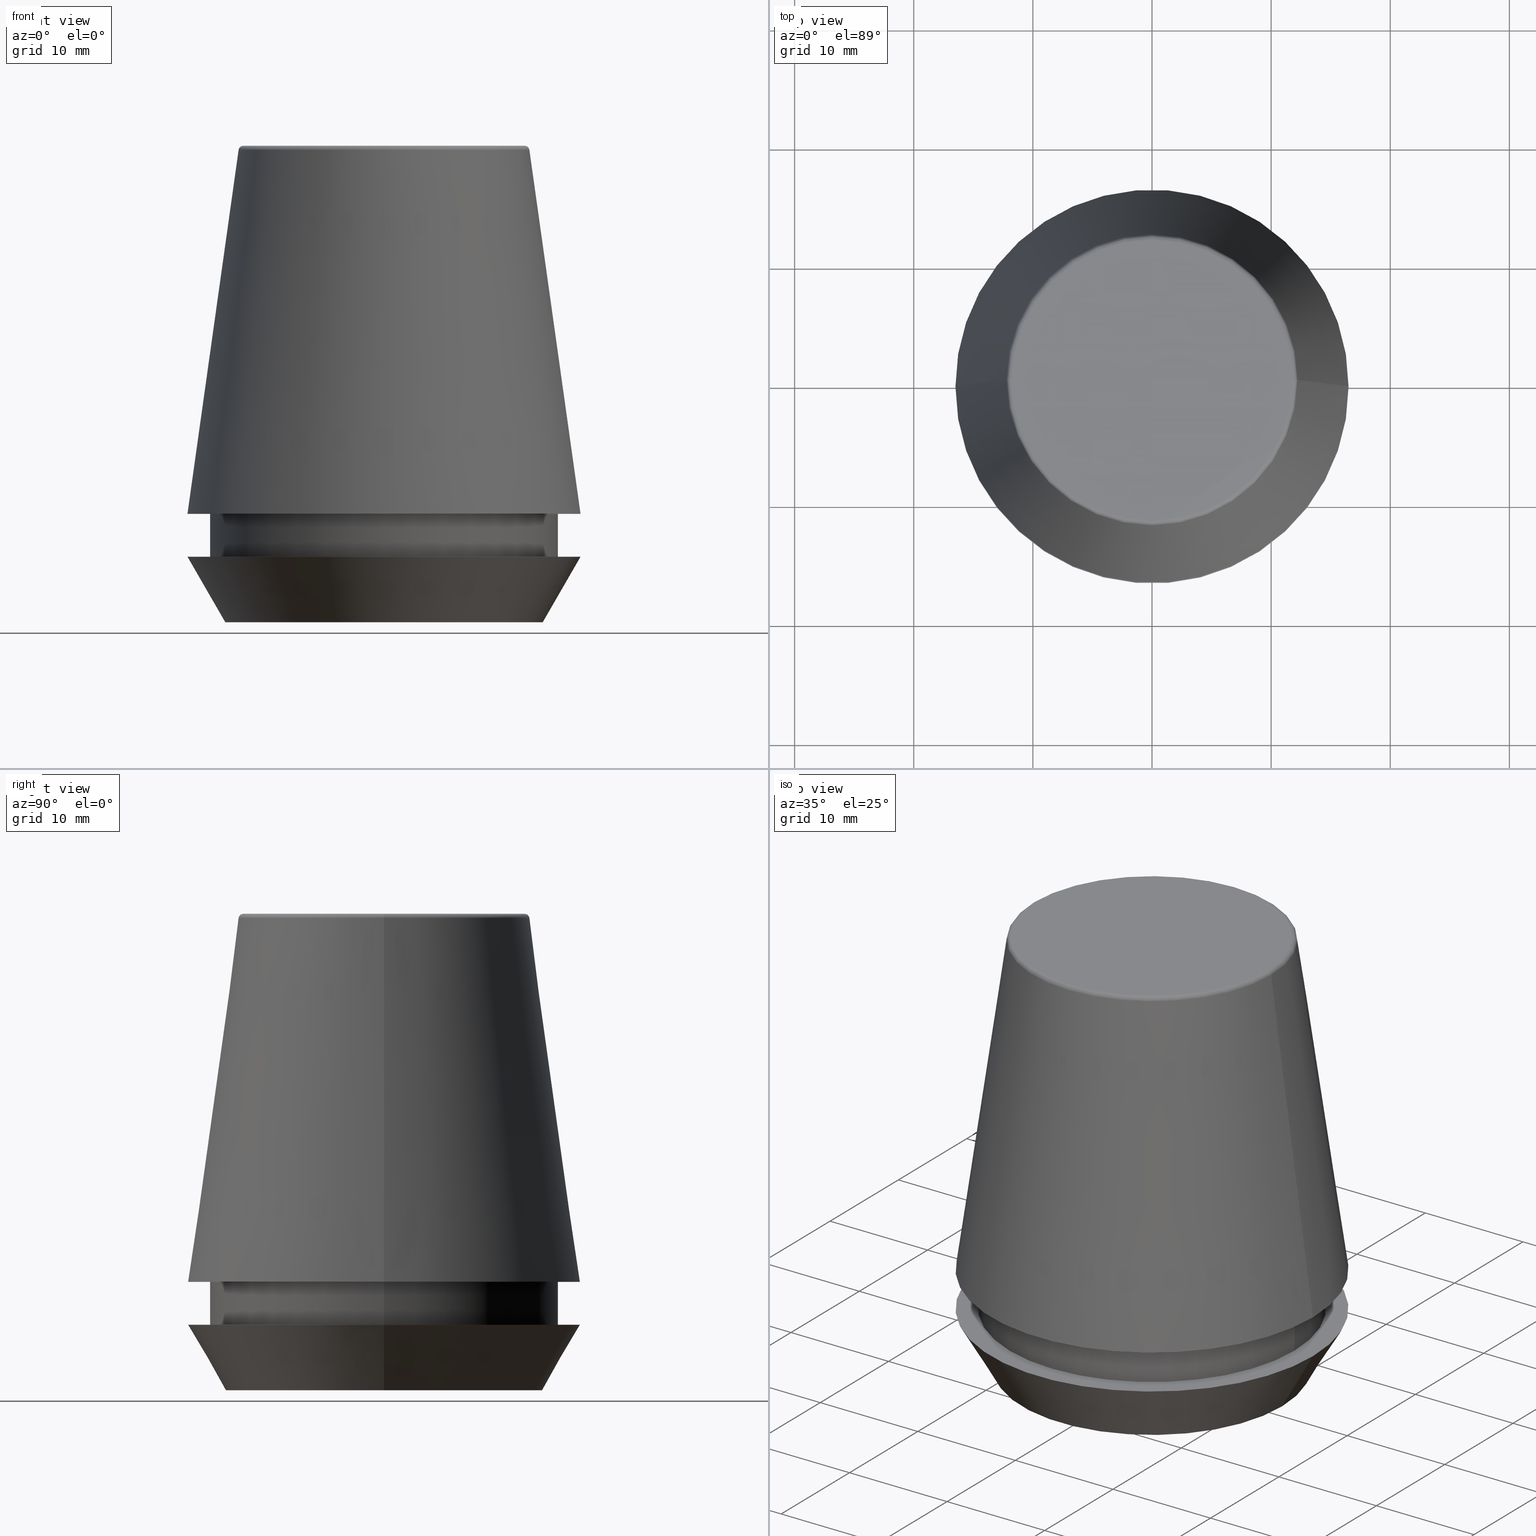
[diagram: canonical four-view strip — front | top / right | iso, engineering-drawing reading convention]
A machine part, canonical four-view strip (front | top / right | iso — engineering-drawing reading convention). The complete STEP part file that produces these views, byte-faithful:
ISO-10303-21;
HEADER;
FILE_DESCRIPTION (( 'STEP AP203' ),
    '1' );
FILE_NAME ('TAP COLLET ER 32G  20.0 X 16.0.STEP',
    '2019-04-09T11:43:04',
    ( '' ),
    ( '' ),
    'SwSTEP 2.0',
    'SolidWorks 2014',
    '' );
FILE_SCHEMA (( 'CONFIG_CONTROL_DESIGN' ));
ENDSEC;

DATA;
#1 = ORIENTED_EDGE ( 'NONE', *, *, #200, .F. ) ;
#2 = DATE_AND_TIME ( #73, #158 ) ;
#3 = DIRECTION ( 'NONE',  ( 1.000000000000000000, 0.0000000000000000000, 0.0000000000000000000 ) ) ;
#4 = CYLINDRICAL_SURFACE ( 'NONE', #236, 14.60000000000000000 ) ;
#5 = DIRECTION ( 'NONE',  ( -1.000000000000000000, 0.0000000000000000000, 0.0000000000000000000 ) ) ;
#6 = ORIENTED_EDGE ( 'NONE', *, *, #149, .F. ) ;
#7 = PERSON_AND_ORGANIZATION_ROLE ( 'design_owner' ) ;
#8 = PERSON_AND_ORGANIZATION ( #233, #201 ) ;
#9 = CIRCLE ( 'NONE', #103, 16.50032537154048700 ) ;
#10 = CARTESIAN_POINT ( 'NONE',  ( 12.20600611160694300, 1.757755848304969800E-015, 39.65566924038402900 ) ) ;
#11 = LINE ( 'NONE', #161, #309 ) ;
#12 = VERTEX_POINT ( 'NONE', #91 ) ;
#13 = ORIENTED_EDGE ( 'NONE', *, *, #229, .F. ) ;
#14 = ORIENTED_EDGE ( 'NONE', *, *, #169, .F. ) ;
#15 = DIRECTION ( 'NONE',  ( -0.0000000000000000000, -0.0000000000000000000, 1.000000000000000000 ) ) ;
#16 = LOCAL_TIME ( 17, 13, 4.000000000000000000, #97 ) ;
#17 = PLANE ( 'NONE',  #96 ) ;
#18 = AXIS2_PLACEMENT_3D ( 'NONE', #313, #69, #252 ) ;
#19 = ORIENTED_EDGE ( 'NONE', *, *, #168, .T. ) ;
#20 = CALENDAR_DATE ( 2019, 9, 4 ) ;
#21 = CARTESIAN_POINT ( 'NONE',  ( 0.0000000000000000000, 11.80989888411031400, 40.00000000000000700 ) ) ;
#22 = SHAPE_DEFINITION_REPRESENTATION ( #381, #129 ) ;
#23 = VERTEX_POINT ( 'NONE', #127 ) ;
#24 = AXIS2_PLACEMENT_3D ( 'NONE', #75, #197, #3 ) ;
#25 = EDGE_LOOP ( 'NONE', ( #43, #64, #294, #130 ) ) ;
#26 = DIRECTION ( 'NONE',  ( 0.0000000000000000000, -0.0000000000000000000, 1.000000000000000000 ) ) ;
#27 = VERTEX_POINT ( 'NONE', #85 ) ;
#28 = ADVANCED_FACE ( 'NONE', ( #183 ), #31, .F. ) ;
#29 = DATE_TIME_ROLE ( 'creation_date' ) ;
#30 = DATE_AND_TIME ( #115, #196 ) ;
#31 = PLANE ( 'NONE',  #136 ) ;
#32 = AXIS2_PLACEMENT_3D ( 'NONE', #83, #116, #70 ) ;
#33 = CIRCLE ( 'NONE', #32, 0.4000000000000028000 ) ;
#34 = VERTEX_POINT ( 'NONE', #383 ) ;
#35 = DIRECTION ( 'NONE',  ( -0.0000000000000000000, -0.0000000000000000000, 1.000000000000000000 ) ) ;
#36 = DIRECTION ( 'NONE',  ( -0.0000000000000000000, -0.0000000000000000000, 1.000000000000000000 ) ) ;
#37 =( GEOMETRIC_REPRESENTATION_CONTEXT ( 3 ) GLOBAL_UNCERTAINTY_ASSIGNED_CONTEXT ( ( #53 ) ) GLOBAL_UNIT_ASSIGNED_CONTEXT ( ( #312, #249, #192 ) ) REPRESENTATION_CONTEXT ( 'NONE', 'WORKASPACE' ) );
#38 = DIRECTION ( 'NONE',  ( -0.0000000000000000000, -0.0000000000000000000, 1.000000000000000000 ) ) ;
#39 = PERSON_AND_ORGANIZATION ( #233, #201 ) ;
#40 = DIRECTION ( 'NONE',  ( -0.0000000000000000000, -0.0000000000000000000, 1.000000000000000000 ) ) ;
#41 = DIRECTION ( 'NONE',  ( -0.0000000000000000000, -0.0000000000000000000, 1.000000000000000000 ) ) ;
#42 = ORIENTED_EDGE ( 'NONE', *, *, #186, .F. ) ;
#43 = ORIENTED_EDGE ( 'NONE', *, *, #212, .F. ) ;
#44 = AXIS2_PLACEMENT_3D ( 'NONE', #344, #138, #251 ) ;
#45 = ADVANCED_FACE ( 'NONE', ( #264 ), #4, .T. ) ;
#46 = AXIS2_PLACEMENT_3D ( 'NONE', #280, #36, #219 ) ;
#47 = DIRECTION ( 'NONE',  ( 1.000000000000000000, 0.0000000000000000000, 0.0000000000000000000 ) ) ;
#48 = FACE_OUTER_BOUND ( 'NONE', #253, .T. ) ;
#49 = DESIGN_CONTEXT ( 'detailed design', #339, 'design' ) ;
#50 = ADVANCED_FACE ( 'NONE', ( #243 ), #343, .T. ) ;
#51 = AXIS2_PLACEMENT_3D ( 'NONE', #310, #99, #66 ) ;
#52 = VERTEX_POINT ( 'NONE', #152 ) ;
#53 = UNCERTAINTY_MEASURE_WITH_UNIT (LENGTH_MEASURE( 1.000000000000000100E-005 ), #312, 'distance_accuracy_value', 'NONE');
#54 = ORIENTED_EDGE ( 'NONE', *, *, #375, .T. ) ;
#55 = ORIENTED_EDGE ( 'NONE', *, *, #191, .T. ) ;
#56 = CIRCLE ( 'NONE', #320, 12.20600611160694300 ) ;
#57 = MANIFOLD_SOLID_BREP ( 'Revolve1', #90 ) ;
#58 = DIRECTION ( 'NONE',  ( 0.0000000000000000000, 0.0000000000000000000, -1.000000000000000000 ) ) ;
#59 = LINE ( 'NONE', #215, #247 ) ;
#60 = CARTESIAN_POINT ( 'NONE',  ( 0.0000000000000000000, 0.0000000000000000000, 9.099999999999997900 ) ) ;
#61 = ORIENTED_EDGE ( 'NONE', *, *, #191, .F. ) ;
#62 = MECHANICAL_CONTEXT ( 'NONE', #376, 'mechanical' ) ;
#63 = ADVANCED_FACE ( 'NONE', ( #162 ), #367, .F. ) ;
#64 = ORIENTED_EDGE ( 'NONE', *, *, #147, .T. ) ;
#65 = LOCAL_TIME ( 17, 13, 4.000000000000000000, #148 ) ;
#66 = DIRECTION ( 'NONE',  ( 0.0000000000000000000, 0.0000000000000000000, -1.000000000000000000 ) ) ;
#67 = VECTOR ( 'NONE', #378, 1000.000000000000000 ) ;
#68 = CARTESIAN_POINT ( 'NONE',  ( -12.20600611160694300, 0.0000000000000000000, 39.65566924038402900 ) ) ;
#69 = DIRECTION ( 'NONE',  ( -0.0000000000000000000, -0.0000000000000000000, 1.000000000000000000 ) ) ;
#70 = DIRECTION ( 'NONE',  ( -1.000000000000000000, 1.224646799147352500E-016, 0.0000000000000000000 ) ) ;
#71 = AXIS2_PLACEMENT_3D ( 'NONE', #217, #35, #135 ) ;
#72 = ADVANCED_FACE ( 'NONE', ( #238 ), #271, .T. ) ;
#73 = CALENDAR_DATE ( 2019, 9, 4 ) ;
#74 = DIRECTION ( 'NONE',  ( 1.000000000000000000, 0.0000000000000000000, 0.0000000000000000000 ) ) ;
#75 = CARTESIAN_POINT ( 'NONE',  ( 0.0000000000000000000, 0.0000000000000000000, 0.0000000000000000000 ) ) ;
#76 = CARTESIAN_POINT ( 'NONE',  ( 13.32457351945710200, 0.0000000000000000000, 0.0000000000000000000 ) ) ;
#77 = CIRCLE ( 'NONE', #112, 13.32457351945710200 ) ;
#78 = CARTESIAN_POINT ( 'NONE',  ( 13.32457351945710200, 0.0000000000000000000, 0.0000000000000000000 ) ) ;
#79 = AXIS2_PLACEMENT_3D ( 'NONE', #340, #98, #279 ) ;
#80 = DATE_TIME_ROLE ( 'classification_date' ) ;
#81 = EDGE_LOOP ( 'NONE', ( #14, #203, #323, #164 ) ) ;
#82 = CC_DESIGN_DATE_AND_TIME_ASSIGNMENT ( #2, #80, ( #204 ) ) ;
#83 = CARTESIAN_POINT ( 'NONE',  ( -11.80989888411031400, 1.446295486667959300E-015, 39.60000000000000100 ) ) ;
#84 = ADVANCED_FACE ( 'NONE', ( #330, #180 ), #209, .F. ) ;
#85 = CARTESIAN_POINT ( 'NONE',  ( -14.60000000000000000, 1.787984326755135800E-015, 9.099999999999997900 ) ) ;
#86 = PERSON_AND_ORGANIZATION ( #233, #201 ) ;
#87 = AXIS2_PLACEMENT_3D ( 'NONE', #314, #38, #195 ) ;
#88 = DIRECTION ( 'NONE',  ( 1.000000000000000000, 0.0000000000000000000, 0.0000000000000000000 ) ) ;
#89 = ORIENTED_EDGE ( 'NONE', *, *, #169, .T. ) ;
#90 = CLOSED_SHELL ( 'NONE', ( #305, #295, #45, #292, #28, #63, #354, #319, #50, #84, #94, #72 ) ) ;
#91 = CARTESIAN_POINT ( 'NONE',  ( -14.60000000000000000, 1.787984326755135800E-015, 5.500000000000005300 ) ) ;
#92 = EDGE_LOOP ( 'NONE', ( #341, #6 ) ) ;
#93 = PERSON_AND_ORGANIZATION_ROLE ( 'creator' ) ;
#94 = ADVANCED_FACE ( 'NONE', ( #321 ), #173, .T. ) ;
#95 = DIRECTION ( 'NONE',  ( -0.0000000000000000000, -0.0000000000000000000, 1.000000000000000000 ) ) ;
#96 = AXIS2_PLACEMENT_3D ( 'NONE', #324, #113, #291 ) ;
#97 = COORDINATED_UNIVERSAL_TIME_OFFSET ( 5, 30, .AHEAD. ) ;
#98 = DIRECTION ( 'NONE',  ( -0.0000000000000000000, -0.0000000000000000000, 1.000000000000000000 ) ) ;
#99 = DIRECTION ( 'NONE',  ( 0.0000000000000000000, -1.000000000000000000, 0.0000000000000000000 ) ) ;
#100 = DIRECTION ( 'NONE',  ( -0.1391731009600586900, 0.0000000000000000000, -0.9902680687415712500 ) ) ;
#101 = LINE ( 'NONE', #185, #281 ) ;
#102 = ORIENTED_EDGE ( 'NONE', *, *, #248, .T. ) ;
#103 = AXIS2_PLACEMENT_3D ( 'NONE', #374, #159, #276 ) ;
#104 = CARTESIAN_POINT ( 'NONE',  ( 14.60000000000000000, 0.0000000000000000000, 5.500000000000005300 ) ) ;
#105 = PRODUCT_RELATED_PRODUCT_CATEGORY ( 'detail', '', ( #234 ) ) ;
#106 = DIRECTION ( 'NONE',  ( 1.000000000000000000, 0.0000000000000000000, 0.0000000000000000000 ) ) ;
#107 = LOCAL_TIME ( 17, 13, 4.000000000000000000, #184 ) ;
#108 = CC_DESIGN_PERSON_AND_ORGANIZATION_ASSIGNMENT ( #8, #181, ( #246 ) ) ;
#109 = CONICAL_SURFACE ( 'NONE', #24, 13.32457351945710200, 0.5235987755982927100 ) ;
#110 = CARTESIAN_POINT ( 'NONE',  ( 0.0000000000000000000, 0.0000000000000000000, 5.500000000000005300 ) ) ;
#111 = DIRECTION ( 'NONE',  ( 1.000000000000000000, 0.0000000000000000000, 0.0000000000000000000 ) ) ;
#112 = AXIS2_PLACEMENT_3D ( 'NONE', #371, #95, #245 ) ;
#113 = DIRECTION ( 'NONE',  ( 0.0000000000000000000, 0.0000000000000000000, -1.000000000000000000 ) ) ;
#114 = ORIENTED_EDGE ( 'NONE', *, *, #258, .F. ) ;
#115 = CALENDAR_DATE ( 2019, 9, 4 ) ;
#116 = DIRECTION ( 'NONE',  ( 1.224646799147353200E-016, 1.000000000000000000, 0.0000000000000000000 ) ) ;
#117 = FACE_OUTER_BOUND ( 'NONE', #81, .T. ) ;
#118 = CARTESIAN_POINT ( 'NONE',  ( 0.0000000000000000000, 0.0000000000000000000, 0.0000000000000000000 ) ) ;
#119 = ORIENTED_EDGE ( 'NONE', *, *, #160, .F. ) ;
#120 = CONICAL_SURFACE ( 'NONE', #257, 13.32457351945710200, 0.5235987755982927100 ) ;
#121 = SECURITY_CLASSIFICATION_LEVEL ( 'unclassified' ) ;
#122 = DIRECTION ( 'NONE',  ( 0.0000000000000000000, -0.0000000000000000000, 1.000000000000000000 ) ) ;
#123 = AXIS2_PLACEMENT_3D ( 'NONE', #260, #259, #47 ) ;
#124 = PERSON_AND_ORGANIZATION ( #233, #201 ) ;
#125 = CARTESIAN_POINT ( 'NONE',  ( 11.80989888411031400, 0.0000000000000000000, 40.00000000000000700 ) ) ;
#126 = CC_DESIGN_SECURITY_CLASSIFICATION ( #204, ( #246 ) ) ;
#127 = CARTESIAN_POINT ( 'NONE',  ( 16.50000000000000000, 0.0000000000000000000, 5.500000000000005300 ) ) ;
#128 = DIRECTION ( 'NONE',  ( -0.0000000000000000000, -0.0000000000000000000, 1.000000000000000000 ) ) ;
#129 = ADVANCED_BREP_SHAPE_REPRESENTATION ( 'TAP COLLET ER 32G  20.0 X 16.0', ( #57, #335 ), #37 ) ;
#130 = ORIENTED_EDGE ( 'NONE', *, *, #289, .F. ) ;
#131 = APPLICATION_PROTOCOL_DEFINITION ( 'international standard', 'config_control_design', 1994, #376 ) ;
#132 = VERTEX_POINT ( 'NONE', #125 ) ;
#133 = CC_DESIGN_APPROVAL ( #166, ( #204 ) ) ;
#134 = EDGE_LOOP ( 'NONE', ( #224, #182 ) ) ;
#135 = DIRECTION ( 'NONE',  ( 1.000000000000000000, 0.0000000000000000000, 0.0000000000000000000 ) ) ;
#136 = AXIS2_PLACEMENT_3D ( 'NONE', #21, #306, #328 ) ;
#137 = CIRCLE ( 'NONE', #123, 11.80989888411031400 ) ;
#138 = DIRECTION ( 'NONE',  ( -0.0000000000000000000, -0.0000000000000000000, 1.000000000000000000 ) ) ;
#139 = DIRECTION ( 'NONE',  ( 1.000000000000000000, 0.0000000000000000000, 0.0000000000000000000 ) ) ;
#140 = AXIS2_PLACEMENT_3D ( 'NONE', #348, #349, #220 ) ;
#141 = CARTESIAN_POINT ( 'NONE',  ( 0.0000000000000000000, 0.0000000000000000000, 39.60000000000000100 ) ) ;
#142 = EDGE_LOOP ( 'NONE', ( #333, #227 ) ) ;
#143 = ORIENTED_EDGE ( 'NONE', *, *, #212, .T. ) ;
#144 = DIRECTION ( 'NONE',  ( 0.0000000000000000000, 0.0000000000000000000, 1.000000000000000000 ) ) ;
#145 = DIRECTION ( 'NONE',  ( -0.0000000000000000000, -0.0000000000000000000, 1.000000000000000000 ) ) ;
#146 = CIRCLE ( 'NONE', #18, 12.20600611160694300 ) ;
#147 = EDGE_CURVE ( 'NONE', #12, #286, #364, .T. ) ;
#148 = COORDINATED_UNIVERSAL_TIME_OFFSET ( 5, 30, .AHEAD. ) ;
#149 = EDGE_CURVE ( 'NONE', #34, #315, #77, .T. ) ;
#150 = LINE ( 'NONE', #282, #67 ) ;
#151 = AXIS2_PLACEMENT_3D ( 'NONE', #369, #128, #307 ) ;
#152 = CARTESIAN_POINT ( 'NONE',  ( -11.80989888411031400, 1.470550059081603400E-015, 40.00000000000000700 ) ) ;
#153 = CARTESIAN_POINT ( 'NONE',  ( 0.0000000000000000000, 16.50032537154048700, 9.099999999999999600 ) ) ;
#154 = EDGE_CURVE ( 'NONE', #286, #262, #101, .T. ) ;
#155 = APPROVAL_ROLE ( '' ) ;
#156 = ORIENTED_EDGE ( 'NONE', *, *, #186, .T. ) ;
#157 = AXIS2_PLACEMENT_3D ( 'NONE', #285, #41, #225 ) ;
#158 = LOCAL_TIME ( 17, 13, 4.000000000000000000, #237 ) ;
#159 = DIRECTION ( 'NONE',  ( -0.0000000000000000000, -0.0000000000000000000, 1.000000000000000000 ) ) ;
#160 = EDGE_CURVE ( 'NONE', #358, #261, #9, .T. ) ;
#161 = CARTESIAN_POINT ( 'NONE',  ( -16.50032537154048700, 0.0000000000000000000, 9.099999999999997900 ) ) ;
#162 = FACE_OUTER_BOUND ( 'NONE', #92, .T. ) ;
#163 = DIRECTION ( 'NONE',  ( 1.000000000000000000, 0.0000000000000000000, 0.0000000000000000000 ) ) ;
#164 = ORIENTED_EDGE ( 'NONE', *, *, #347, .F. ) ;
#165 = EDGE_LOOP ( 'NONE', ( #362, #373 ) ) ;
#166 = APPROVAL ( #263, 'UNSPECIFIED' ) ;
#167 = APPROVAL_DATE_TIME ( #244, #377 ) ;
#168 = EDGE_CURVE ( 'NONE', #315, #34, #387, .T. ) ;
#169 = EDGE_CURVE ( 'NONE', #34, #316, #59, .T. ) ;
#170 = DIRECTION ( 'NONE',  ( 1.000000000000000000, 0.0000000000000000000, 0.0000000000000000000 ) ) ;
#171 = CIRCLE ( 'NONE', #71, 16.50000000000000000 ) ;
#172 = CARTESIAN_POINT ( 'NONE',  ( 0.0000000000000000000, 0.0000000000000000000, 40.00000000000000700 ) ) ;
#173 = CONICAL_SURFACE ( 'NONE', #193, 16.50032537154048700, 0.1396263401595395900 ) ;
#174 = ORIENTED_EDGE ( 'NONE', *, *, #202, .T. ) ;
#175 = ORIENTED_EDGE ( 'NONE', *, *, #200, .T. ) ;
#176 = APPROVAL_PERSON_ORGANIZATION ( #256, #377, #302 ) ;
#177 = AXIS2_PLACEMENT_3D ( 'NONE', #332, #205, #334 ) ;
#178 = EDGE_CURVE ( 'NONE', #23, #316, #171, .T. ) ;
#179 = EDGE_LOOP ( 'NONE', ( #211, #54, #363, #42 ) ) ;
#180 = FACE_BOUND ( 'NONE', #142, .T. ) ;
#181 = PERSON_AND_ORGANIZATION_ROLE ( 'design_supplier' ) ;
#182 = ORIENTED_EDGE ( 'NONE', *, *, #347, .T. ) ;
#183 = FACE_OUTER_BOUND ( 'NONE', #165, .T. ) ;
#184 = COORDINATED_UNIVERSAL_TIME_OFFSET ( 5, 30, .AHEAD. ) ;
#185 = CARTESIAN_POINT ( 'NONE',  ( 14.60000000000000000, 0.0000000000000000000, 101.8074564848000400 ) ) ;
#186 = EDGE_CURVE ( 'NONE', #194, #132, #267, .T. ) ;
#187 = DIRECTION ( 'NONE',  ( 1.000000000000000000, 0.0000000000000000000, 0.0000000000000000000 ) ) ;
#188 = LINE ( 'NONE', #78, #268 ) ;
#189 = CC_DESIGN_PERSON_AND_ORGANIZATION_ASSIGNMENT ( #318, #326, ( #204 ) ) ;
#190 = CARTESIAN_POINT ( 'NONE',  ( -14.60000000000000000, 1.787984326755135800E-015, 101.8074564848000400 ) ) ;
#191 = EDGE_CURVE ( 'NONE', #286, #12, #355, .T. ) ;
#192 =( NAMED_UNIT ( * ) SI_UNIT ( $, .STERADIAN. ) SOLID_ANGLE_UNIT ( ) );
#193 = AXIS2_PLACEMENT_3D ( 'NONE', #60, #58, #5 ) ;
#194 = VERTEX_POINT ( 'NONE', #10 ) ;
#195 = DIRECTION ( 'NONE',  ( 1.000000000000000000, 0.0000000000000000000, 0.0000000000000000000 ) ) ;
#196 = LOCAL_TIME ( 17, 13, 4.000000000000000000, #274 ) ;
#197 = DIRECTION ( 'NONE',  ( -0.0000000000000000000, -0.0000000000000000000, 1.000000000000000000 ) ) ;
#198 = EDGE_LOOP ( 'NONE', ( #19, #89, #254, #278 ) ) ;
#199 = FACE_OUTER_BOUND ( 'NONE', #134, .T. ) ;
#200 = EDGE_CURVE ( 'NONE', #213, #261, #11, .T. ) ;
#201 = ORGANIZATION ( 'UNSPECIFIED', 'UNSPECIFIED', '' ) ;
#202 = EDGE_CURVE ( 'NONE', #194, #358, #150, .T. ) ;
#203 = ORIENTED_EDGE ( 'NONE', *, *, #149, .T. ) ;
#204 = SECURITY_CLASSIFICATION ( '', '', #121 ) ;
#205 = DIRECTION ( 'NONE',  ( -0.0000000000000000000, -0.0000000000000000000, 1.000000000000000000 ) ) ;
#206 = TOROIDAL_SURFACE ( 'NONE', #353, 11.80989888411031400, 0.4000000000000026900 ) ;
#207 = EDGE_LOOP ( 'NONE', ( #55, #143, #327, #214 ) ) ;
#208 = CARTESIAN_POINT ( 'NONE',  ( 0.0000000000000000000, 0.0000000000000000000, 0.0000000000000000000 ) ) ;
#209 = PLANE ( 'NONE',  #250 ) ;
#210 = APPROVAL_STATUS ( 'not_yet_approved' ) ;
#211 = ORIENTED_EDGE ( 'NONE', *, *, #258, .T. ) ;
#212 = EDGE_CURVE ( 'NONE', #12, #27, #300, .T. ) ;
#213 = VERTEX_POINT ( 'NONE', #68 ) ;
#214 = ORIENTED_EDGE ( 'NONE', *, *, #154, .F. ) ;
#215 = CARTESIAN_POINT ( 'NONE',  ( -13.32457351945710200, 1.631789631060672300E-015, 0.0000000000000000000 ) ) ;
#216 = APPROVAL_DATE_TIME ( #298, #166 ) ;
#217 = CARTESIAN_POINT ( 'NONE',  ( 0.0000000000000000000, 0.0000000000000000000, 5.500000000000005300 ) ) ;
#218 = VECTOR ( 'NONE', #342, 1000.000000000000000 ) ;
#219 = DIRECTION ( 'NONE',  ( 1.000000000000000000, 0.0000000000000000000, 0.0000000000000000000 ) ) ;
#220 = DIRECTION ( 'NONE',  ( -1.000000000000000000, 0.0000000000000000000, 0.0000000000000000000 ) ) ;
#221 = EDGE_CURVE ( 'NONE', #262, #27, #231, .T. ) ;
#222 = AXIS2_PLACEMENT_3D ( 'NONE', #208, #26, #88 ) ;
#223 = DIRECTION ( 'NONE',  ( -0.0000000000000000000, -0.0000000000000000000, 1.000000000000000000 ) ) ;
#224 = ORIENTED_EDGE ( 'NONE', *, *, #178, .T. ) ;
#225 = DIRECTION ( 'NONE',  ( 1.000000000000000000, 0.0000000000000000000, 0.0000000000000000000 ) ) ;
#226 = CARTESIAN_POINT ( 'NONE',  ( -16.50000000000000000, 2.020667218593133100E-015, 5.500000000000005300 ) ) ;
#227 = ORIENTED_EDGE ( 'NONE', *, *, #289, .T. ) ;
#228 = APPROVAL_PERSON_ORGANIZATION ( #308, #166, #232 ) ;
#229 = EDGE_CURVE ( 'NONE', #213, #194, #146, .T. ) ;
#230 = DIRECTION ( 'NONE',  ( -0.0000000000000000000, -0.0000000000000000000, 1.000000000000000000 ) ) ;
#231 = CIRCLE ( 'NONE', #44, 14.60000000000000000 ) ;
#232 = APPROVAL_ROLE ( '' ) ;
#233 = PERSON ( 'UNSPECIFIED', 'UNSPECIFIED', 'UNSPECIFIED', ('UNSPECIFIED'), ('UNSPECIFIED'), ('UNSPECIFIED') ) ;
#234 = PRODUCT ( 'TAP COLLET ER 32G  20.0 X 16.0', 'TAP COLLET ER 32G  20.0 X 16.0', '', ( #62 ) ) ;
#235 = CC_DESIGN_APPROVAL ( #377, ( #246 ) ) ;
#236 = AXIS2_PLACEMENT_3D ( 'NONE', #338, #370, #266 ) ;
#237 = COORDINATED_UNIVERSAL_TIME_OFFSET ( 5, 30, .AHEAD. ) ;
#238 = FACE_OUTER_BOUND ( 'NONE', #384, .T. ) ;
#239 = PERSON_AND_ORGANIZATION_ROLE ( 'creator' ) ;
#240 = ORIENTED_EDGE ( 'NONE', *, *, #229, .T. ) ;
#241 = DIRECTION ( 'NONE',  ( -0.4999999999999947300, 6.123233995736700700E-017, 0.8660254037844418200 ) ) ;
#242 = AXIS2_PLACEMENT_3D ( 'NONE', #172, #230, #139 ) ;
#243 = FACE_OUTER_BOUND ( 'NONE', #25, .T. ) ;
#244 = DATE_AND_TIME ( #329, #16 ) ;
#245 = DIRECTION ( 'NONE',  ( 1.000000000000000000, 0.0000000000000000000, 0.0000000000000000000 ) ) ;
#246 = PRODUCT_DEFINITION_FORMATION_WITH_SPECIFIED_SOURCE ( 'ANY', '', #234, .NOT_KNOWN. ) ;
#247 = VECTOR ( 'NONE', #241, 999.9999999999998900 ) ;
#248 = EDGE_CURVE ( 'NONE', #261, #358, #386, .T. ) ;
#249 =( NAMED_UNIT ( * ) PLANE_ANGLE_UNIT ( ) SI_UNIT ( $, .RADIAN. ) );
#250 = AXIS2_PLACEMENT_3D ( 'NONE', #153, #122, #273 ) ;
#251 = DIRECTION ( 'NONE',  ( 1.000000000000000000, 0.0000000000000000000, 0.0000000000000000000 ) ) ;
#252 = DIRECTION ( 'NONE',  ( 1.000000000000000000, 0.0000000000000000000, 0.0000000000000000000 ) ) ;
#253 = EDGE_LOOP ( 'NONE', ( #114, #174, #287, #1 ) ) ;
#254 = ORIENTED_EDGE ( 'NONE', *, *, #178, .F. ) ;
#255 = CARTESIAN_POINT ( 'NONE',  ( 0.0000000000000000000, 0.0000000000000000000, 39.65566924038402900 ) ) ;
#256 = PERSON_AND_ORGANIZATION ( #233, #201 ) ;
#257 = AXIS2_PLACEMENT_3D ( 'NONE', #382, #223, #106 ) ;
#258 = EDGE_CURVE ( 'NONE', #194, #213, #56, .T. ) ;
#259 = DIRECTION ( 'NONE',  ( -0.0000000000000000000, -0.0000000000000000000, 1.000000000000000000 ) ) ;
#260 = CARTESIAN_POINT ( 'NONE',  ( 0.0000000000000000000, 0.0000000000000000000, 40.00000000000000700 ) ) ;
#261 = VERTEX_POINT ( 'NONE', #284 ) ;
#262 = VERTEX_POINT ( 'NONE', #380 ) ;
#263 = APPROVAL_STATUS ( 'not_yet_approved' ) ;
#264 = FACE_OUTER_BOUND ( 'NONE', #207, .T. ) ;
#265 = PERSON_AND_ORGANIZATION ( #233, #201 ) ;
#266 = DIRECTION ( 'NONE',  ( 1.000000000000000000, 0.0000000000000000000, 0.0000000000000000000 ) ) ;
#267 = CIRCLE ( 'NONE', #51, 0.4000000000000045200 ) ;
#268 = VECTOR ( 'NONE', #322, 999.9999999999998900 ) ;
#269 = ORIENTED_EDGE ( 'NONE', *, *, #147, .F. ) ;
#270 = CC_DESIGN_DATE_AND_TIME_ASSIGNMENT ( #337, #29, ( #317 ) ) ;
#271 = TOROIDAL_SURFACE ( 'NONE', #177, 11.80989888411031400, 0.4000000000000026900 ) ;
#272 = CC_DESIGN_PERSON_AND_ORGANIZATION_ASSIGNMENT ( #265, #93, ( #317 ) ) ;
#273 = DIRECTION ( 'NONE',  ( 1.000000000000000000, 0.0000000000000000000, 0.0000000000000000000 ) ) ;
#274 = COORDINATED_UNIVERSAL_TIME_OFFSET ( 5, 30, .AHEAD. ) ;
#275 = APPLICATION_PROTOCOL_DEFINITION ( 'international standard', 'config_control_design', 1994, #339 ) ;
#276 = DIRECTION ( 'NONE',  ( 1.000000000000000000, 0.0000000000000000000, 0.0000000000000000000 ) ) ;
#277 = FACE_BOUND ( 'NONE', #297, .T. ) ;
#278 = ORIENTED_EDGE ( 'NONE', *, *, #361, .F. ) ;
#279 = DIRECTION ( 'NONE',  ( 1.000000000000000000, 0.0000000000000000000, 0.0000000000000000000 ) ) ;
#280 = CARTESIAN_POINT ( 'NONE',  ( 0.0000000000000000000, 0.0000000000000000000, 5.500000000000005300 ) ) ;
#281 = VECTOR ( 'NONE', #303, 1000.000000000000000 ) ;
#282 = CARTESIAN_POINT ( 'NONE',  ( 16.50032537154048700, 2.020707065114692300E-015, 9.099999999999997900 ) ) ;
#283 = FACE_OUTER_BOUND ( 'NONE', #179, .T. ) ;
#284 = CARTESIAN_POINT ( 'NONE',  ( -16.50032537154048700, 0.0000000000000000000, 9.099999999999997900 ) ) ;
#285 = CARTESIAN_POINT ( 'NONE',  ( 0.0000000000000000000, 0.0000000000000000000, 9.099999999999997900 ) ) ;
#286 = VERTEX_POINT ( 'NONE', #104 ) ;
#287 = ORIENTED_EDGE ( 'NONE', *, *, #160, .T. ) ;
#288 = CC_DESIGN_APPROVAL ( #296, ( #317 ) ) ;
#289 = EDGE_CURVE ( 'NONE', #27, #262, #379, .T. ) ;
#290 = FACE_OUTER_BOUND ( 'NONE', #198, .T. ) ;
#291 = DIRECTION ( 'NONE',  ( -1.000000000000000000, 0.0000000000000000000, -0.0000000000000000000 ) ) ;
#292 = ADVANCED_FACE ( 'NONE', ( #290 ), #120, .T. ) ;
#293 = AXIS2_PLACEMENT_3D ( 'NONE', #110, #145, #170 ) ;
#294 = ORIENTED_EDGE ( 'NONE', *, *, #154, .T. ) ;
#295 = ADVANCED_FACE ( 'NONE', ( #48 ), #359, .T. ) ;
#296 = APPROVAL ( #210, 'UNSPECIFIED' ) ;
#297 = EDGE_LOOP ( 'NONE', ( #61, #269 ) ) ;
#298 = DATE_AND_TIME ( #385, #65 ) ;
#299 = DIRECTION ( 'NONE',  ( -0.0000000000000000000, -0.0000000000000000000, 1.000000000000000000 ) ) ;
#300 = LINE ( 'NONE', #190, #218 ) ;
#301 = CARTESIAN_POINT ( 'NONE',  ( 0.0000000000000000000, 0.0000000000000000000, 101.8074564848000400 ) ) ;
#302 = APPROVAL_ROLE ( '' ) ;
#303 = DIRECTION ( 'NONE',  ( -0.0000000000000000000, -0.0000000000000000000, 1.000000000000000000 ) ) ;
#304 = ORIENTED_EDGE ( 'NONE', *, *, #248, .F. ) ;
#305 = ADVANCED_FACE ( 'NONE', ( #283 ), #206, .T. ) ;
#306 = DIRECTION ( 'NONE',  ( 0.0000000000000000000, 0.0000000000000000000, -1.000000000000000000 ) ) ;
#307 = DIRECTION ( 'NONE',  ( 1.000000000000000000, 0.0000000000000000000, 0.0000000000000000000 ) ) ;
#308 = PERSON_AND_ORGANIZATION ( #233, #201 ) ;
#309 = VECTOR ( 'NONE', #100, 1000.000000000000000 ) ;
#310 = CARTESIAN_POINT ( 'NONE',  ( 11.80989888411031400, 0.0000000000000000000, 39.60000000000000100 ) ) ;
#311 = EDGE_CURVE ( 'NONE', #52, #132, #137, .T. ) ;
#312 =( LENGTH_UNIT ( ) NAMED_UNIT ( * ) SI_UNIT ( .MILLI., .METRE. ) );
#313 = CARTESIAN_POINT ( 'NONE',  ( 0.0000000000000000000, 0.0000000000000000000, 39.65566924038402900 ) ) ;
#314 = CARTESIAN_POINT ( 'NONE',  ( 0.0000000000000000000, 0.0000000000000000000, 9.099999999999997900 ) ) ;
#315 = VERTEX_POINT ( 'NONE', #76 ) ;
#316 = VERTEX_POINT ( 'NONE', #226 ) ;
#317 = PRODUCT_DEFINITION ( 'UNKNOWN', '', #246, #49 ) ;
#318 = PERSON_AND_ORGANIZATION ( #233, #201 ) ;
#319 = ADVANCED_FACE ( 'NONE', ( #277, #199 ), #17, .F. ) ;
#320 = AXIS2_PLACEMENT_3D ( 'NONE', #255, #40, #163 ) ;
#321 = FACE_OUTER_BOUND ( 'NONE', #325, .T. ) ;
#322 = DIRECTION ( 'NONE',  ( 0.4999999999999947300, 0.0000000000000000000, 0.8660254037844418200 ) ) ;
#323 = ORIENTED_EDGE ( 'NONE', *, *, #361, .T. ) ;
#324 = CARTESIAN_POINT ( 'NONE',  ( 0.0000000000000000000, 16.50000000000000000, 5.500000000000002700 ) ) ;
#325 = EDGE_LOOP ( 'NONE', ( #372, #13, #175, #102 ) ) ;
#326 = PERSON_AND_ORGANIZATION_ROLE ( 'classification_officer' ) ;
#327 = ORIENTED_EDGE ( 'NONE', *, *, #221, .F. ) ;
#328 = DIRECTION ( 'NONE',  ( -1.000000000000000000, 0.0000000000000000000, -0.0000000000000000000 ) ) ;
#329 = CALENDAR_DATE ( 2019, 9, 4 ) ;
#330 = FACE_OUTER_BOUND ( 'NONE', #360, .T. ) ;
#331 = CC_DESIGN_PERSON_AND_ORGANIZATION_ASSIGNMENT ( #124, #7, ( #234 ) ) ;
#332 = CARTESIAN_POINT ( 'NONE',  ( 0.0000000000000000000, 0.0000000000000000000, 39.60000000000000100 ) ) ;
#333 = ORIENTED_EDGE ( 'NONE', *, *, #221, .T. ) ;
#334 = DIRECTION ( 'NONE',  ( 1.000000000000000000, 0.0000000000000000000, 0.0000000000000000000 ) ) ;
#335 = AXIS2_PLACEMENT_3D ( 'NONE', #118, #144, #187 ) ;
#336 = ORIENTED_EDGE ( 'NONE', *, *, #311, .F. ) ;
#337 = DATE_AND_TIME ( #20, #107 ) ;
#338 = CARTESIAN_POINT ( 'NONE',  ( 0.0000000000000000000, 0.0000000000000000000, 101.8074564848000400 ) ) ;
#339 = APPLICATION_CONTEXT ( 'configuration controlled 3d designs of mechanical parts and assemblies' ) ;
#340 = CARTESIAN_POINT ( 'NONE',  ( 0.0000000000000000000, 0.0000000000000000000, 0.0000000000000000000 ) ) ;
#341 = ORIENTED_EDGE ( 'NONE', *, *, #168, .F. ) ;
#342 = DIRECTION ( 'NONE',  ( -0.0000000000000000000, -0.0000000000000000000, 1.000000000000000000 ) ) ;
#343 = CYLINDRICAL_SURFACE ( 'NONE', #345, 14.60000000000000000 ) ;
#344 = CARTESIAN_POINT ( 'NONE',  ( 0.0000000000000000000, 0.0000000000000000000, 9.099999999999997900 ) ) ;
#345 = AXIS2_PLACEMENT_3D ( 'NONE', #301, #299, #111 ) ;
#346 = APPROVAL_DATE_TIME ( #30, #296 ) ;
#347 = EDGE_CURVE ( 'NONE', #316, #23, #366, .T. ) ;
#348 = CARTESIAN_POINT ( 'NONE',  ( 0.0000000000000000000, 0.0000000000000000000, 9.099999999999997900 ) ) ;
#349 = DIRECTION ( 'NONE',  ( 0.0000000000000000000, 0.0000000000000000000, -1.000000000000000000 ) ) ;
#350 = CIRCLE ( 'NONE', #242, 11.80989888411031400 ) ;
#351 = ORIENTED_EDGE ( 'NONE', *, *, #375, .F. ) ;
#352 = CARTESIAN_POINT ( 'NONE',  ( 16.50032537154048700, 2.020707065114692300E-015, 9.099999999999997900 ) ) ;
#353 = AXIS2_PLACEMENT_3D ( 'NONE', #141, #15, #74 ) ;
#354 = ADVANCED_FACE ( 'NONE', ( #117 ), #109, .T. ) ;
#355 = CIRCLE ( 'NONE', #46, 14.60000000000000000 ) ;
#356 = APPROVAL_PERSON_ORGANIZATION ( #39, #296, #155 ) ;
#357 = CC_DESIGN_PERSON_AND_ORGANIZATION_ASSIGNMENT ( #86, #239, ( #246 ) ) ;
#358 = VERTEX_POINT ( 'NONE', #352 ) ;
#359 = CONICAL_SURFACE ( 'NONE', #140, 16.50032537154048700, 0.1396263401595395900 ) ;
#360 = EDGE_LOOP ( 'NONE', ( #304, #119 ) ) ;
#361 = EDGE_CURVE ( 'NONE', #315, #23, #188, .T. ) ;
#362 = ORIENTED_EDGE ( 'NONE', *, *, #365, .T. ) ;
#363 = ORIENTED_EDGE ( 'NONE', *, *, #365, .F. ) ;
#364 = CIRCLE ( 'NONE', #151, 14.60000000000000000 ) ;
#365 = EDGE_CURVE ( 'NONE', #132, #52, #350, .T. ) ;
#366 = CIRCLE ( 'NONE', #293, 16.50000000000000000 ) ;
#367 = PLANE ( 'NONE',  #222 ) ;
#368 = APPROVAL_STATUS ( 'not_yet_approved' ) ;
#369 = CARTESIAN_POINT ( 'NONE',  ( 0.0000000000000000000, 0.0000000000000000000, 5.500000000000005300 ) ) ;
#370 = DIRECTION ( 'NONE',  ( -0.0000000000000000000, -0.0000000000000000000, 1.000000000000000000 ) ) ;
#371 = CARTESIAN_POINT ( 'NONE',  ( 0.0000000000000000000, 0.0000000000000000000, 0.0000000000000000000 ) ) ;
#372 = ORIENTED_EDGE ( 'NONE', *, *, #202, .F. ) ;
#373 = ORIENTED_EDGE ( 'NONE', *, *, #311, .T. ) ;
#374 = CARTESIAN_POINT ( 'NONE',  ( 0.0000000000000000000, 0.0000000000000000000, 9.099999999999997900 ) ) ;
#375 = EDGE_CURVE ( 'NONE', #213, #52, #33, .T. ) ;
#376 = APPLICATION_CONTEXT ( 'configuration controlled 3d designs of mechanical parts and assemblies' ) ;
#377 = APPROVAL ( #368, 'UNSPECIFIED' ) ;
#378 = DIRECTION ( 'NONE',  ( 0.1391731009600586900, 1.704378926181473100E-017, -0.9902680687415712500 ) ) ;
#379 = CIRCLE ( 'NONE', #157, 14.60000000000000000 ) ;
#380 = CARTESIAN_POINT ( 'NONE',  ( 14.60000000000000000, 0.0000000000000000000, 9.099999999999997900 ) ) ;
#381 = PRODUCT_DEFINITION_SHAPE ( 'NONE', 'NONE',  #317 ) ;
#382 = CARTESIAN_POINT ( 'NONE',  ( 0.0000000000000000000, 0.0000000000000000000, 0.0000000000000000000 ) ) ;
#383 = CARTESIAN_POINT ( 'NONE',  ( -13.32457351945710200, 1.826228424826902600E-015, 0.0000000000000000000 ) ) ;
#384 = EDGE_LOOP ( 'NONE', ( #351, #240, #156, #336 ) ) ;
#385 = CALENDAR_DATE ( 2019, 9, 4 ) ;
#386 = CIRCLE ( 'NONE', #87, 16.50032537154048700 ) ;
#387 = CIRCLE ( 'NONE', #79, 13.32457351945710200 ) ;
ENDSEC;
END-ISO-10303-21;
